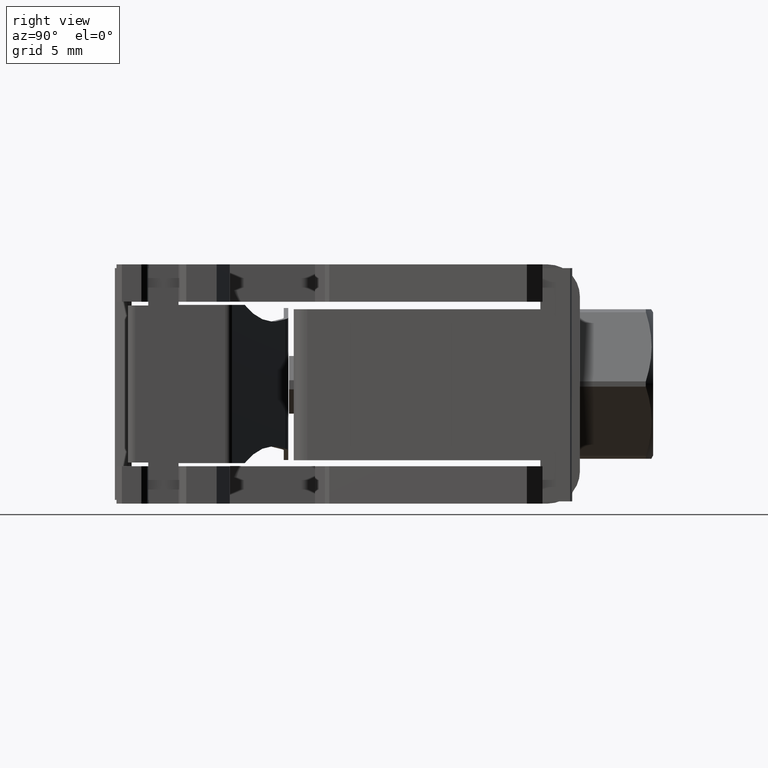
[diagram: clean part render]
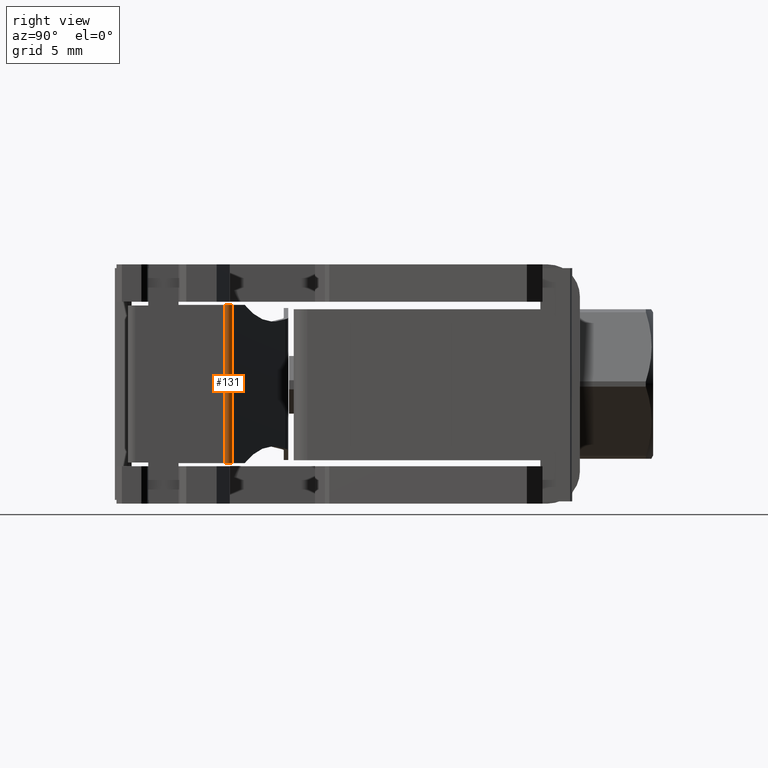
[diagram: same view with one face highlighted and labeled with its STEP entity id]
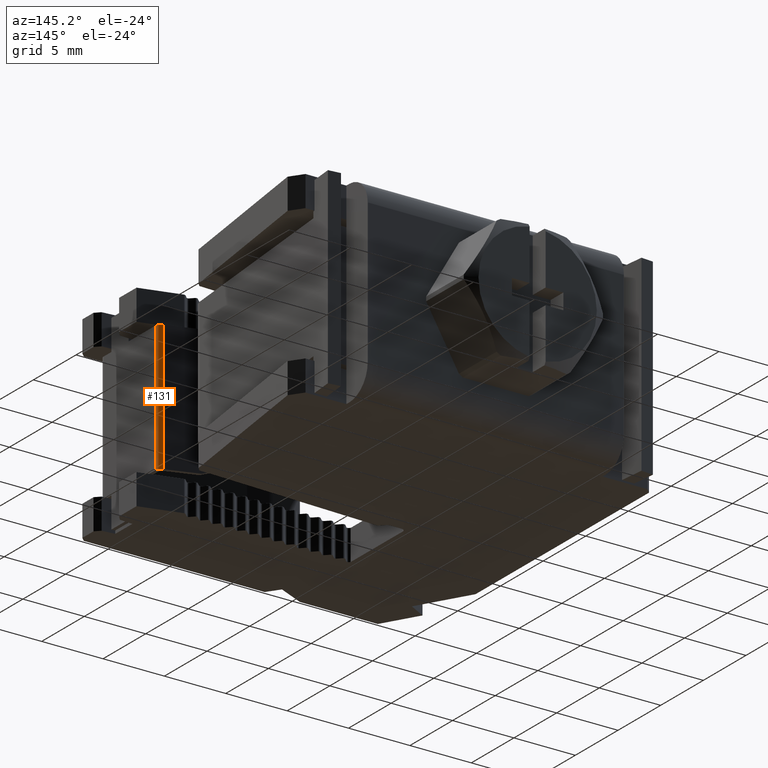
[diagram: same view with one face highlighted and labeled with its STEP entity id]
A machine part, right view. The second image highlights one B-rep face of the part: STEP entity #131.
A second angle (auxiliary view) of the same face is appended — the face is thin or edge-on in the first view.
In plain terms, the highlighted cylindrical surface (edge-blend (fillet) strip) has radius 0.5 mm, axis along (0, -0, -1).
Its self-contained STEP definition (entity closure, byte-faithful):
#131 = ADVANCED_FACE ( 'NONE', ( #5509 ), #5478, .T. ) ;
#203 = EDGE_LOOP ( 'NONE', ( #1171, #1267, #1169, #1252 ) ) ;
#1169 = ORIENTED_EDGE ( 'NONE', *, *, #1864, .F. ) ;
#1171 = ORIENTED_EDGE ( 'NONE', *, *, #1862, .T. ) ;
#1252 = ORIENTED_EDGE ( 'NONE', *, *, #1802, .F. ) ;
#1267 = ORIENTED_EDGE ( 'NONE', *, *, #1783, .T. ) ;
#1783 = EDGE_CURVE ( 'NONE', #2416, #2373, #7762, .T. ) ;
#1802 = EDGE_CURVE ( 'NONE', #2382, #2375, #7803, .T. ) ;
#1862 = EDGE_CURVE ( 'NONE', #2382, #2416, #7863, .T. ) ;
#1864 = EDGE_CURVE ( 'NONE', #2375, #2373, #7853, .T. ) ;
#2373 = VERTEX_POINT ( 'NONE', #9991 ) ;
#2375 = VERTEX_POINT ( 'NONE', #9981 ) ;
#2382 = VERTEX_POINT ( 'NONE', #9976 ) ;
#2416 = VERTEX_POINT ( 'NONE', #9951 ) ;
#5465 = CARTESIAN_POINT ( 'NONE',  ( 19.90348252617250700, 6.085121131669879400, 11.75000000000000000 ) ) ;
#5478 = CYLINDRICAL_SURFACE ( 'NONE', #11892, 0.5000000000000004400 ) ;
#5491 = DIRECTION ( 'NONE',  ( -1.000000000000000000, 0.0000000000000000000, 0.0000000000000000000 ) ) ;
#5499 = DIRECTION ( 'NONE',  ( 0.0000000000000000000, -0.0000000000000000000, -1.000000000000000000 ) ) ;
#5509 = FACE_OUTER_BOUND ( 'NONE', #203, .T. ) ;
#7540 = VECTOR ( 'NONE', #7870, 1000.000000000000000 ) ;
#7594 = VECTOR ( 'NONE', #7864, 1000.000000000000000 ) ;
#7762 = CIRCLE ( 'NONE', #7791, 0.5000000000000004400 ) ;
#7791 = AXIS2_PLACEMENT_3D ( 'NONE', #8646, #8664, #8665 ) ;
#7797 = AXIS2_PLACEMENT_3D ( 'NONE', #8703, #8709, #8711 ) ;
#7803 = CIRCLE ( 'NONE', #7797, 0.5000000000000004400 ) ;
#7834 = CARTESIAN_POINT ( 'NONE',  ( 20.06094780947403300, 6.559678488113520200, 11.75000000000000000 ) ) ;
#7839 = CARTESIAN_POINT ( 'NONE',  ( 20.40348252617251000, 6.085121131669879400, 11.75000000000000000 ) ) ;
#7853 = LINE ( 'NONE', #7834, #7540 ) ;
#7863 = LINE ( 'NONE', #7839, #7594 ) ;
#7864 = DIRECTION ( 'NONE',  ( 0.0000000000000000000, -0.0000000000000000000, -1.000000000000000000 ) ) ;
#7870 = DIRECTION ( 'NONE',  ( 0.0000000000000000000, -0.0000000000000000000, -1.000000000000000000 ) ) ;
#8646 = CARTESIAN_POINT ( 'NONE',  ( 19.90348252617250700, 6.085121131669879400, -1.289999999999047000 ) ) ;
#8664 = DIRECTION ( 'NONE',  ( 0.0000000000000000000, 0.0000000000000000000, 1.000000000000000000 ) ) ;
#8665 = DIRECTION ( 'NONE',  ( 1.000000000000000000, 0.0000000000000000000, 0.0000000000000000000 ) ) ;
#8703 = CARTESIAN_POINT ( 'NONE',  ( 19.90348252617250700, 6.085121131669879400, 9.290000000000606700 ) ) ;
#8709 = DIRECTION ( 'NONE',  ( 0.0000000000000000000, 0.0000000000000000000, 1.000000000000000000 ) ) ;
#8711 = DIRECTION ( 'NONE',  ( 1.000000000000000000, 0.0000000000000000000, 0.0000000000000000000 ) ) ;
#9951 = CARTESIAN_POINT ( 'NONE',  ( 20.40348252617251000, 6.085121131669879400, -1.289999999999047000 ) ) ;
#9976 = CARTESIAN_POINT ( 'NONE',  ( 20.40348252617251000, 6.085121131669879400, 9.290000000000606700 ) ) ;
#9981 = CARTESIAN_POINT ( 'NONE',  ( 20.06094780947403300, 6.559678488113520200, 9.290000000000606700 ) ) ;
#9991 = CARTESIAN_POINT ( 'NONE',  ( 20.06094780947403300, 6.559678488113520200, -1.289999999999047000 ) ) ;
#11892 = AXIS2_PLACEMENT_3D ( 'NONE', #5465, #5499, #5491 ) ;